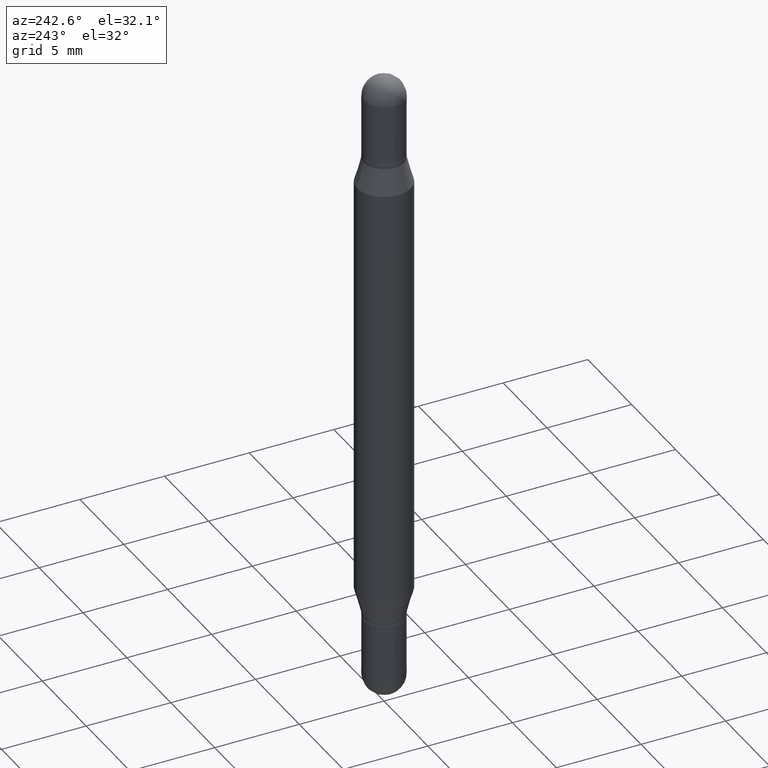
[diagram: clean part render]
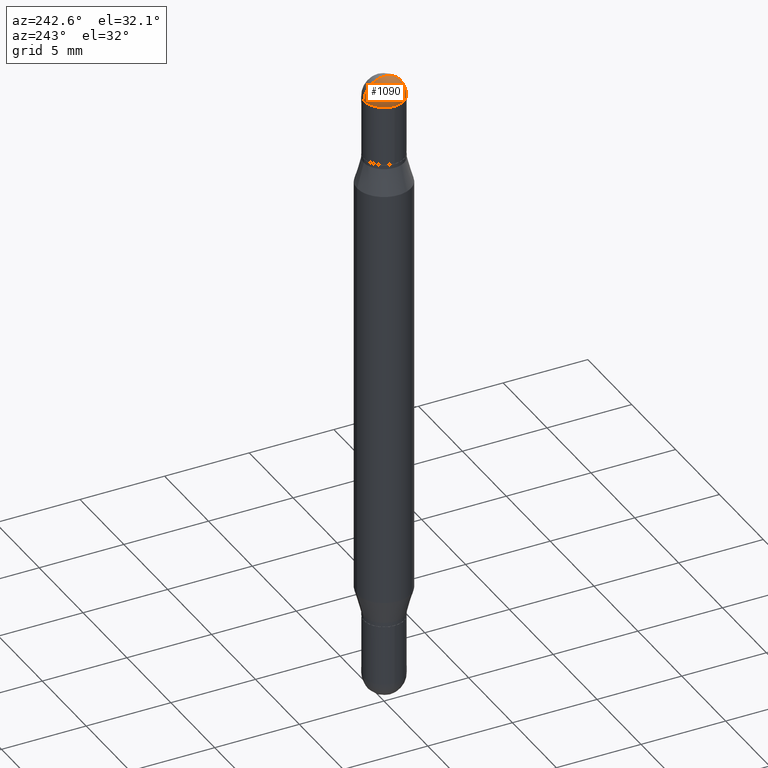
[diagram: same view with one face highlighted and labeled with its STEP entity id]
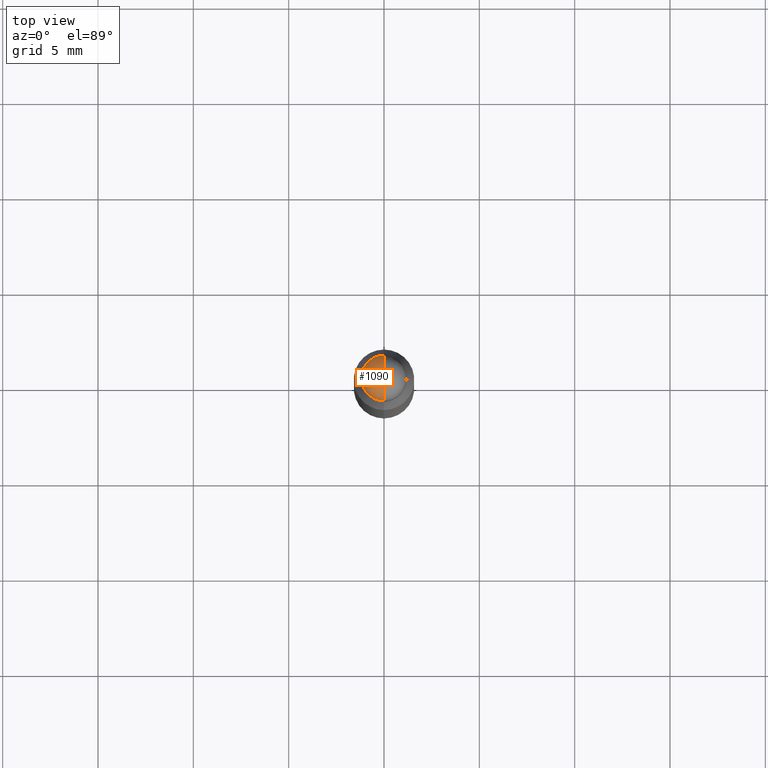
[diagram: same view with one face highlighted and labeled with its STEP entity id]
A machine part, auxiliary view. The second image highlights one B-rep face of the part: STEP entity #1090.
A second angle (top view) of the same face is appended — the face is thin or edge-on in the first view.
In plain terms, the highlighted spherical surface has radius 1.1913 mm.
Its self-contained STEP definition (entity closure, byte-faithful):
#21 = DIRECTION ( 'NONE',  ( -1.000000000000000000, 6.860497997771530774E-15, 5.827999781331232286E-31 ) ) ;
#49 = AXIS2_PLACEMENT_3D ( 'NONE', #1023, #420, #757 ) ;
#53 = AXIS2_PLACEMENT_3D ( 'NONE', #186, #596, #433 ) ;
#67 = CIRCLE ( 'NONE', #49, 0.04689999999999999725 ) ;
#80 = CARTESIAN_POINT ( 'NONE',  ( 3.553510722267622201E-29, -1.720940724002502970E-16, -0.04690000000000053154 ) ) ;
#130 = CARTESIAN_POINT ( 'NONE',  ( 3.662187114433328241E-29, -1.751554413099070675E-17, -1.195183497228115035E-16 ) ) ;
#148 = DIRECTION ( 'NONE',  ( 2.445468806185136597E-29, 3.479614466977828254E-15, 1.000000000000000000 ) ) ;
#174 = SPHERICAL_SURFACE ( 'NONE', #53, 0.04690000000000013602 ) ;
#186 = CARTESIAN_POINT ( 'NONE',  ( 3.549499992371371099E-29, -1.778376658882507705E-16, -0.04690000000000025399 ) ) ;
#229 = CARTESIAN_POINT ( 'NONE',  ( 3.549499992371371099E-29, -1.778376658882507705E-16, -0.04690000000000025399 ) ) ;
#249 = AXIS2_PLACEMENT_3D ( 'NONE', #229, #1077, #307 ) ;
#260 = EDGE_LOOP ( 'NONE', ( #1093, #434, #870, #618 ) ) ;
#271 = FACE_OUTER_BOUND ( 'NONE', #260, .T. ) ;
#275 = EDGE_CURVE ( 'NONE', #828, #664, #546, .T. ) ;
#307 = DIRECTION ( 'NONE',  ( 6.982962677686265133E-15, 1.000000000000000000, 0.000000000000000000 ) ) ;
#395 = AXIS2_PLACEMENT_3D ( 'NONE', #792, #21, #697 ) ;
#420 = DIRECTION ( 'NONE',  ( 2.445468806185136597E-29, 3.479614466977828254E-15, 1.000000000000000000 ) ) ;
#433 = DIRECTION ( 'NONE',  ( -6.982962677686265922E-15, -1.000000000000000000, 3.458496260635717735E-15 ) ) ;
#434 = ORIENTED_EDGE ( 'NONE', *, *, #683, .T. ) ;
#444 = EDGE_CURVE ( 'NONE', #554, #502, #67, .T. ) ;
#447 = CIRCLE ( 'NONE', #395, 0.04690000000000013602 ) ;
#463 = AXIS2_PLACEMENT_3D ( 'NONE', #80, #148, #743 ) ;
#500 = CIRCLE ( 'NONE', #463, 0.04689999999999999725 ) ;
#502 = VERTEX_POINT ( 'NONE', #825 ) ;
#546 = CIRCLE ( 'NONE', #249, 0.04690000000000013602 ) ;
#554 = VERTEX_POINT ( 'NONE', #753 ) ;
#596 = DIRECTION ( 'NONE',  ( -1.000000000000000000, 6.982962677686265922E-15, 1.566701062079987781E-31 ) ) ;
#618 = ORIENTED_EDGE ( 'NONE', *, *, #918, .T. ) ;
#664 = VERTEX_POINT ( 'NONE', #787 ) ;
#683 = EDGE_CURVE ( 'NONE', #828, #554, #447, .T. ) ;
#697 = DIRECTION ( 'NONE',  ( -6.860497997771530774E-15, -1.000000000000000000, 0.000000000000000000 ) ) ;
#743 = DIRECTION ( 'NONE',  ( 1.000000000000000000, -6.982962677686266711E-15, 0.000000000000000000 ) ) ;
#753 = CARTESIAN_POINT ( 'NONE',  ( 3.217573560955207797E-16, 0.04689999999999990010, -0.04690000000000069114 ) ) ;
#757 = DIRECTION ( 'NONE',  ( 1.000000000000000000, -6.982962677686266711E-15, 0.000000000000000000 ) ) ;
#787 = CARTESIAN_POINT ( 'NONE',  ( -3.275009495834508474E-16, -0.04690000000000024011, -0.04690000000000036501 ) ) ;
#792 = CARTESIAN_POINT ( 'NONE',  ( 3.549499992371371099E-29, -1.778376658882507705E-16, -0.04690000000000025399 ) ) ;
#825 = CARTESIAN_POINT ( 'NONE',  ( -0.04689999999999999725, -9.408370971656128076E-17, -0.04690000000000053154 ) ) ;
#828 = VERTEX_POINT ( 'NONE', #130 ) ;
#870 = ORIENTED_EDGE ( 'NONE', *, *, #444, .T. ) ;
#918 = EDGE_CURVE ( 'NONE', #502, #664, #500, .T. ) ;
#1023 = CARTESIAN_POINT ( 'NONE',  ( 3.553510722267622201E-29, -1.720940724002502970E-16, -0.04690000000000053154 ) ) ;
#1077 = DIRECTION ( 'NONE',  ( 1.000000000000000000, -6.982962677686265922E-15, -1.566701062080016245E-31 ) ) ;
#1090 = ADVANCED_FACE ( 'NONE', ( #271 ), #174, .T. ) ;
#1093 = ORIENTED_EDGE ( 'NONE', *, *, #275, .F. ) ;